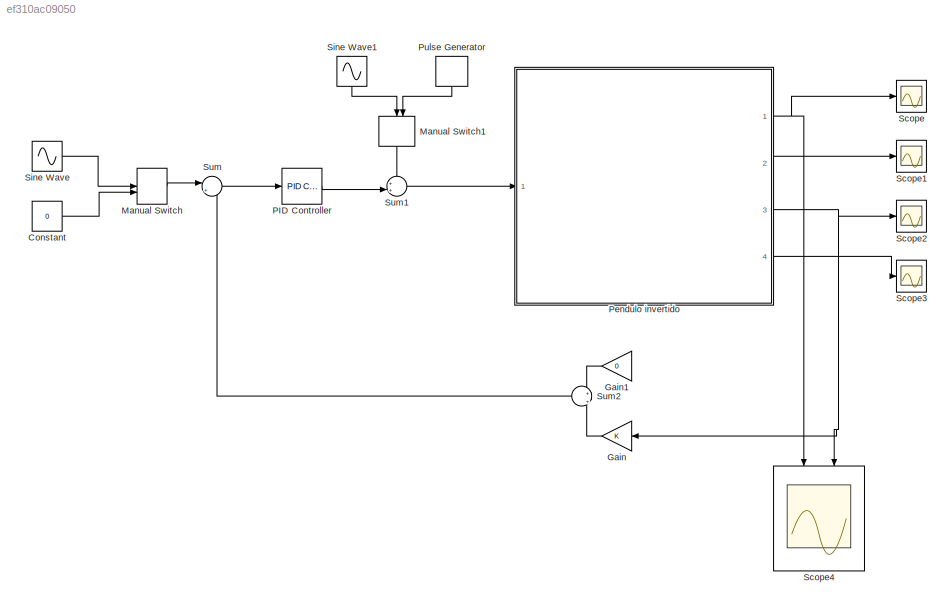
MODEL slx_ef310ac09050
KIND model
CONFIG AbsTol = auto
CONFIG EnableMultiTasking = off
CONFIG FixedStep = auto
CONFIG MaxStep = auto
CONFIG MinStep = auto
CONFIG RelTol = 1e-3
CONFIG SampleTimeConstraint = Unconstrained
CONFIG SolverName = VariableStepAuto
CONFIG StartTime = 0.0
CONFIG StopTime = 50.0
BLOCK [Constant] Constant
  Value = 0
BLOCK [Gain] Gain
  NameLocation = top
BLOCK [Gain] Gain1
  Gain = 0
  NameLocation = top
BLOCK [ManualSwitch] Manual Switch
  CurrentSetting = 0
BLOCK [ManualSwitch] Manual Switch1
  CurrentSetting = 0
  NameLocation = left
BLOCK [Reference] PID Controller  REF=pid_lib/PID Controller
  Ports = [1, 1]
  SourceBlock = pid_lib/PID Controller
  SourceProductBaseCode = SL
  SourceType = PID 1dof
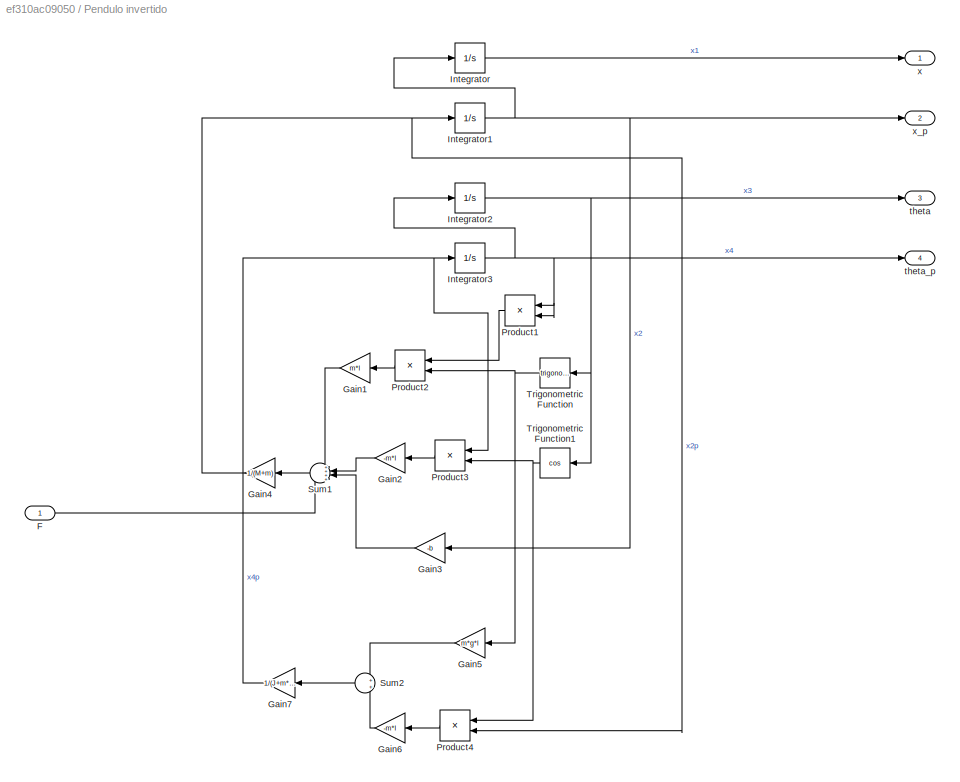
BLOCK [SubSystem] Pendulo invertido
  Ports = [1, 4]
  RequestExecContextInheritance = off
BLOCK [Inport] Pendulo invertido/F
BLOCK [Gain] Pendulo invertido/Gain1
  Gain = m*l
  NameLocation = top
BLOCK [Gain] Pendulo invertido/Gain2
  Gain = -m*l
  NameLocation = top
BLOCK [Gain] Pendulo invertido/Gain3
  Gain = -b
  NameLocation = top
BLOCK [Gain] Pendulo invertido/Gain4
  Gain = 1/(M+m)
  NameLocation = top
BLOCK [Gain] Pendulo invertido/Gain5
  Gain = m*g*l
  NameLocation = top
BLOCK [Gain] Pendulo invertido/Gain6
  Gain = -m*l
  NameLocation = top
BLOCK [Gain] Pendulo invertido/Gain7
  Gain = 1/(J+m*l*l)
  NameLocation = top
BLOCK [Integrator] Pendulo invertido/Integrator
  NameLocation = top
  Ports = [1, 1]
BLOCK [Integrator] Pendulo invertido/Integrator1
  Ports = [1, 1]
BLOCK [Integrator] Pendulo invertido/Integrator2
  NameLocation = top
  Ports = [1, 1]
BLOCK [Integrator] Pendulo invertido/Integrator3
  Ports = [1, 1]
BLOCK [Product] Pendulo invertido/Product1
  NameLocation = top
  Ports = [2, 1]
BLOCK [Product] Pendulo invertido/Product2
  NameLocation = top
  Ports = [2, 1]
BLOCK [Product] Pendulo invertido/Product3
  NameLocation = top
  Ports = [2, 1]
BLOCK [Product] Pendulo invertido/Product4
  NameLocation = top
  Ports = [2, 1]
BLOCK [Sum] Pendulo invertido/Sum1
  Inputs = ++++
  NameLocation = top
  Ports = [4, 1]
BLOCK [Sum] Pendulo invertido/Sum2
  NameLocation = top
  Ports = [2, 1]
BLOCK [Trigonometry] Pendulo invertido/Trigonometric Function
  NameLocation = top
  Ports = [1, 1]
BLOCK [Trigonometry] Pendulo invertido/Trigonometric Function1
  NameLocation = top
  Operator = cos
  Ports = [1, 1]
BLOCK [Outport] Pendulo invertido/theta
  Port = 3
BLOCK [Outport] Pendulo invertido/theta_p
  Port = 4
BLOCK [Outport] Pendulo invertido/x
BLOCK [Outport] Pendulo invertido/x_p
  Port = 2
BLOCK [DiscretePulseGenerator] Pulse Generator
  Amplitude = 0.001
  NameLocation = left
  Period = 10
  Ports = [0, 1]
  PulseType = Time based
  PulseWidth = 5
BLOCK [Scope] Scope
  Floating = off
  NumInputPorts = 1
  Ports = [1]
  ScopeSpecificationString = Simulink.scopes.TimeScopeBlockCfg('CurrentConfiguration', extmgr.ConfigurationSet(extmgr.Configuration('Core','General UI',true),extmgr.Configuration('Core','Source UI',true),extmgr.Configuration('Sources','WiredSimulink',true),extmgr.Configuration('Visuals','Time Domain',true,'SerializedDisplays',{struct('MinYLimReal','-0.000068','MaxYLimReal','0.000021','YLabelReal','','MinYLimMag','0.000000','M...<+1376ch>
BLOCK [Scope] Scope1
  Floating = off
  NumInputPorts = 1
  Ports = [1]
  ScopeSpecificationString = Simulink.scopes.TimeScopeBlockCfg('CurrentConfiguration', extmgr.ConfigurationSet(extmgr.Configuration('Core','General UI',true),extmgr.Configuration('Core','Source UI',true),extmgr.Configuration('Sources','WiredSimulink',true,'DataLoggingVariableName','ScopeData1'),extmgr.Configuration('Visuals','Time Domain',true,'SerializedDisplays',{struct('MinYLimReal','-0.000041','MaxYLimReal','0.000047','YL...<+1416ch>
BLOCK [Scope] Scope2
  Floating = off
  NumInputPorts = 1
  Ports = [1]
  ScopeSpecificationString = Simulink.scopes.TimeScopeBlockCfg('CurrentConfiguration', extmgr.ConfigurationSet(extmgr.Configuration('Core','General UI',true),extmgr.Configuration('Core','Source UI',true),extmgr.Configuration('Sources','WiredSimulink',true,'DataLoggingVariableName','ScopeData2'),extmgr.Configuration('Visuals','Time Domain',true,'SerializedDisplays',{struct('MinYLimReal','-0.0000042','MaxYLimReal','0.0000042','...<+1423ch>
BLOCK [Scope] Scope3
  Floating = off
  NumInputPorts = 1
  Ports = [1]
  ScopeSpecificationString = Simulink.scopes.TimeScopeBlockCfg('CurrentConfiguration', extmgr.ConfigurationSet(extmgr.Configuration('Core','General UI',true),extmgr.Configuration('Core','Source UI',true),extmgr.Configuration('Sources','WiredSimulink',true,'DataLoggingVariableName','ScopeData3'),extmgr.Configuration('Visuals','Time Domain',true,'SerializedDisplays',{struct('MinYLimReal','-0.0000045','MaxYLimReal','0.000004','Y...<+1422ch>
BLOCK [Scope] Scope4
  Floating = off
  NameLocation = left
  NumInputPorts = 2
  Ports = [2]
  ScopeSpecificationString = Simulink.scopes.TimeScopeBlockCfg('CurrentConfiguration', extmgr.ConfigurationSet(extmgr.Configuration('Core','General UI',true),extmgr.Configuration('Core','Source UI',true),extmgr.Configuration('Sources','WiredSimulink',true,'DataLoggingVariableName','ScopeData1'),extmgr.Configuration('Visuals','Time Domain',true,'SerializedDisplays',{struct('MinYLimReal','-40.91216','MaxYLimReal','328.67907','Y...<+1479ch>
BLOCK [Sin] Sine Wave
  Amplitude = 0.1
  Frequency = 2000*pi
  Ports = [0, 1]
  SampleTime = 0
BLOCK [Sin] Sine Wave1
  Amplitude = 0.001
  Frequency = 0.01*pi
  NameLocation = left
  Ports = [0, 1]
  SampleTime = 0
BLOCK [Sum] Sum
  Inputs = |+-
  Ports = [2, 1]
BLOCK [Sum] Sum1
  Inputs = ++|
  Ports = [2, 1]
BLOCK [Sum] Sum2
  Inputs = +|+
  NameLocation = top
  Ports = [2, 1]
LINE Constant:1 -> Manual Switch:2
LINE Gain1:1 -> Sum2:1
LINE Gain:1 -> Sum2:2
LINE Manual Switch1:1 -> Sum1:1
LINE Manual Switch:1 -> Sum:1
LINE PID Controller:1 -> Sum1:2
LINE Pendulo invertido/F:1 -> Pendulo invertido/Sum1:4
LINE Pendulo invertido/Gain1:1 -> Pendulo invertido/Sum1:1
LINE Pendulo invertido/Gain2:1 -> Pendulo invertido/Sum1:2
LINE Pendulo invertido/Gain3:1 -> Pendulo invertido/Sum1:3
NET Pendulo invertido/Gain4:1 -> Pendulo invertido/Integrator1:1, Pendulo invertido/Product4:2
LINE Pendulo invertido/Gain5:1 -> Pendulo invertido/Sum2:1
LINE Pendulo invertido/Gain6:1 -> Pendulo invertido/Sum2:2
NET Pendulo invertido/Gain7:1 -> Pendulo invertido/Integrator3:1, Pendulo invertido/Product3:1
NET Pendulo invertido/Integrator1:1 -> Pendulo invertido/Gain3:1, Pendulo invertido/Integrator:1, Pendulo invertido/x_p:1
NET Pendulo invertido/Integrator2:1 -> Pendulo invertido/Trigonometric Function1:1, Pendulo invertido/Trigonometric Function:1, Pendulo invertido/theta:1
NET Pendulo invertido/Integrator3:1 -> Pendulo invertido/Integrator2:1, Pendulo invertido/Product1:1, Pendulo invertido/Product1:2, Pendulo invertido/theta_p:1
LINE Pendulo invertido/Integrator:1 -> Pendulo invertido/x:1
LINE Pendulo invertido/Product1:1 -> Pendulo invertido/Product2:1
LINE Pendulo invertido/Product2:1 -> Pendulo invertido/Gain1:1
LINE Pendulo invertido/Product3:1 -> Pendulo invertido/Gain2:1
LINE Pendulo invertido/Product4:1 -> Pendulo invertido/Gain6:1
LINE Pendulo invertido/Sum1:1 -> Pendulo invertido/Gain4:1
LINE Pendulo invertido/Sum2:1 -> Pendulo invertido/Gain7:1
NET Pendulo invertido/Trigonometric Function1:1 -> Pendulo invertido/Product3:2, Pendulo invertido/Product4:1
NET Pendulo invertido/Trigonometric Function:1 -> Pendulo invertido/Gain5:1, Pendulo invertido/Product2:2
NET Pendulo invertido:1 -> Scope4:1, Scope:1
LINE Pendulo invertido:2 -> Scope1:1
NET Pendulo invertido:3 -> Gain:1, Scope2:1, Scope4:2
LINE Pendulo invertido:4 -> Scope3:1
LINE Pulse Generator:1 -> Manual Switch1:2
LINE Sine Wave1:1 -> Manual Switch1:1
LINE Sine Wave:1 -> Manual Switch:1
LINE Sum1:1 -> Pendulo invertido:1
LINE Sum2:1 -> Sum:2
LINE Sum:1 -> PID Controller:1
note: NET lines group one-source signal fan-out (src -> all destinations, sorted); 1:1 wires keep LINE
